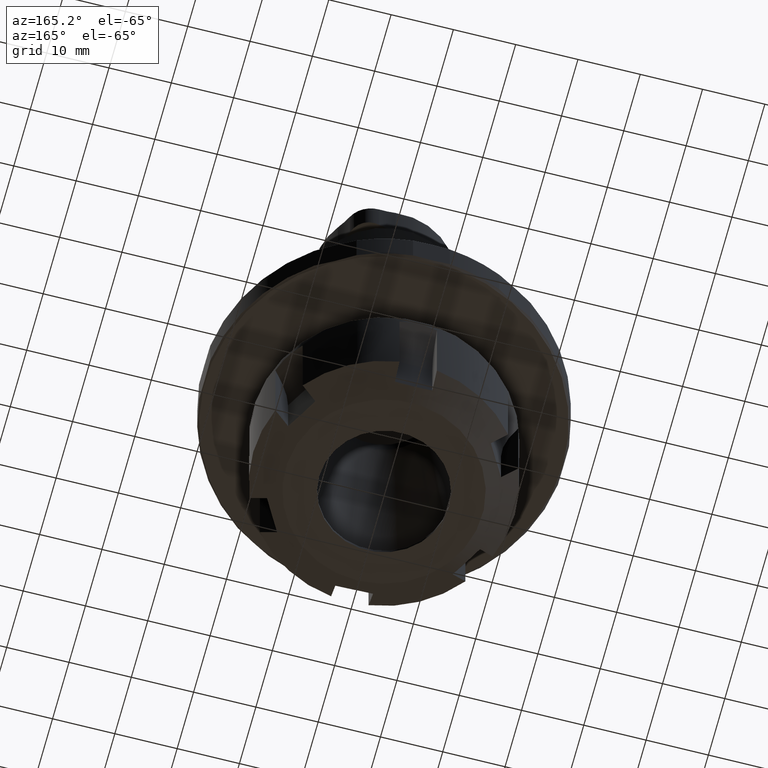
[diagram: clean part render]
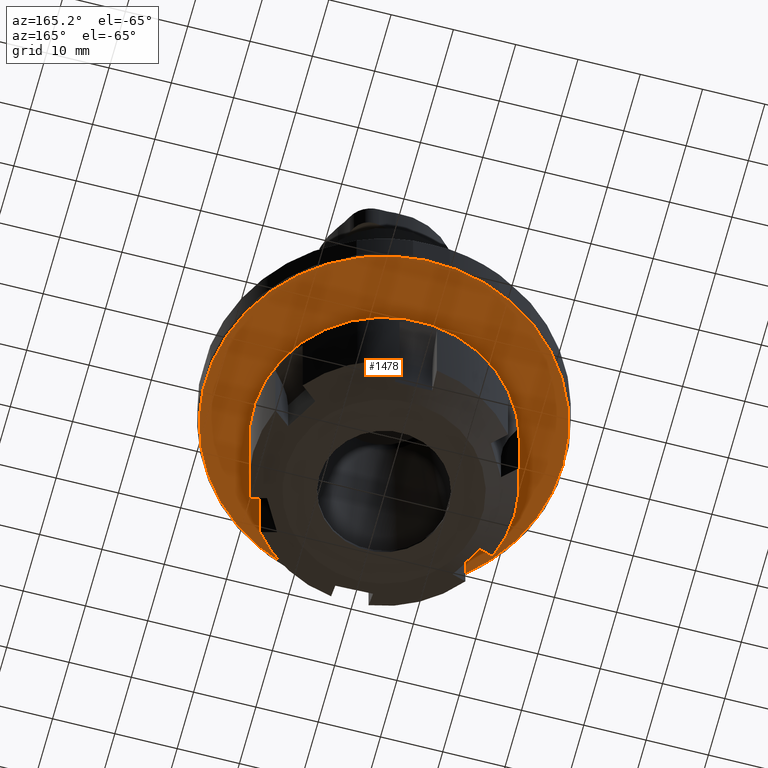
[diagram: same view with one face highlighted and labeled with its STEP entity id]
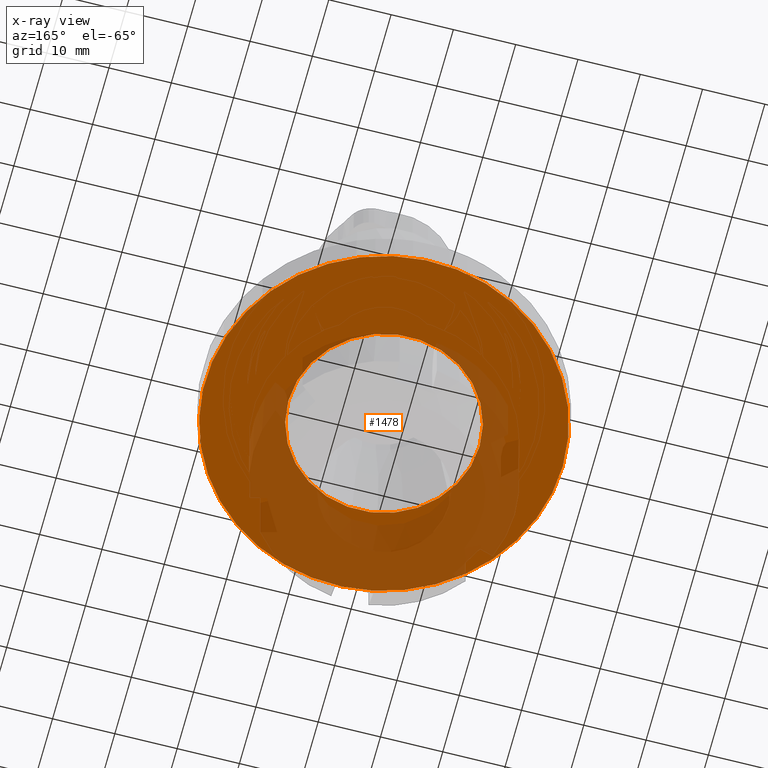
[diagram: x-ray of the same camera — body ghosted, the highlighted face saturated]
A machine part, auxiliary view. The second image highlights one B-rep face of the part: STEP entity #1478.
The next image is the same camera in x-ray: the body ghosted, the highlighted face saturated — about 39% of this face is hidden behind the body in this view.
In plain terms, the highlighted planar face has unit normal (-0, 0, -1).
Its self-contained STEP definition (entity closure, byte-faithful):
#207=PLANE('',#1601);
#293=ORIENTED_EDGE('',*,*,#719,.F.);
#294=ORIENTED_EDGE('',*,*,#720,.T.);
#719=EDGE_CURVE('',#934,#934,#1085,.T.);
#720=EDGE_CURVE('',#935,#935,#1086,.T.);
#934=VERTEX_POINT('',#2239);
#935=VERTEX_POINT('',#2242);
#1085=CIRCLE('',#1600,15.35);
#1086=CIRCLE('',#1602,28.7);
#1176=EDGE_LOOP('',(#293));
#1177=EDGE_LOOP('',(#294));
#1316=FACE_BOUND('',#1176,.T.);
#1317=FACE_BOUND('',#1177,.T.);
#1478=ADVANCED_FACE('',(#1316,#1317),#207,.T.);
#1600=AXIS2_PLACEMENT_3D('',#2238,#1801,#1802);
#1601=AXIS2_PLACEMENT_3D('',#2240,#1803,#1804);
#1602=AXIS2_PLACEMENT_3D('',#2241,#1805,#1806);
#1801=DIRECTION('',(-1.27319154200133E-16,7.79579225983867E-33,-1.));
#1802=DIRECTION('',(1.,0.,-1.27319154200133E-16));
#1803=DIRECTION('',(-1.27319154200133E-16,7.79579225983867E-33,-1.));
#1804=DIRECTION('',(1.,-6.12303176911189E-17,-1.27319154200133E-16));
#1805=DIRECTION('',(2.60563148754756E-18,2.60563148754756E-18,-1.));
#1806=DIRECTION('',(-1.,6.12303176911189E-17,-2.60563148754756E-18));
#2238=CARTESIAN_POINT('',(7.63914925200794E-17,-4.67747535590319E-33,-7.));
#2239=CARTESIAN_POINT('',(15.35,-4.67747535590319E-33,-7.));
#2240=CARTESIAN_POINT('',(21.5,-1.31645183035906E-15,-7.));
#2241=CARTESIAN_POINT('',(-6.93941219289284E-15,4.30324971949023E-31,-7.));
#2242=CARTESIAN_POINT('',(-28.7,1.75731011773511E-15,-7.));